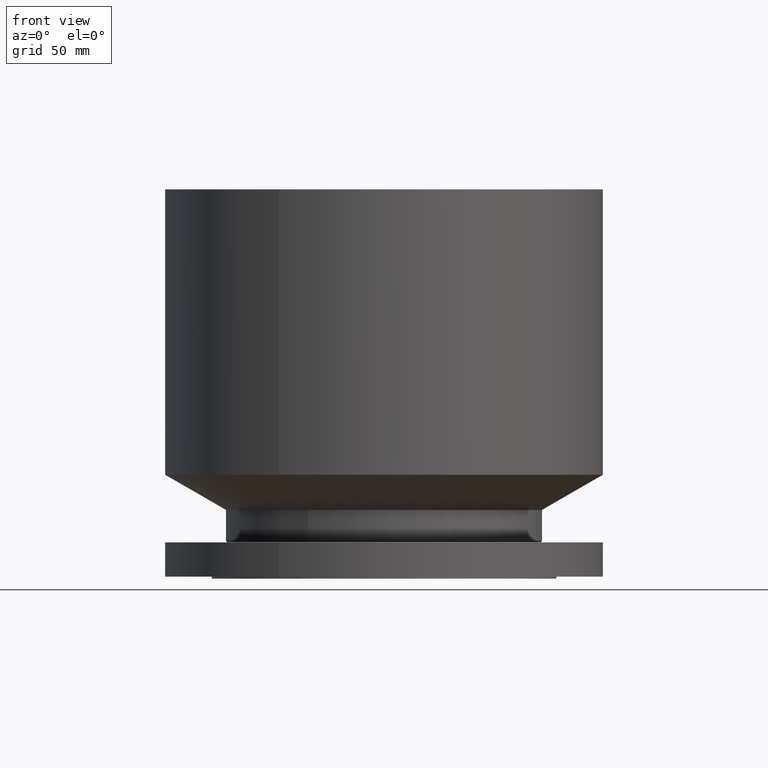
[diagram: clean part render]
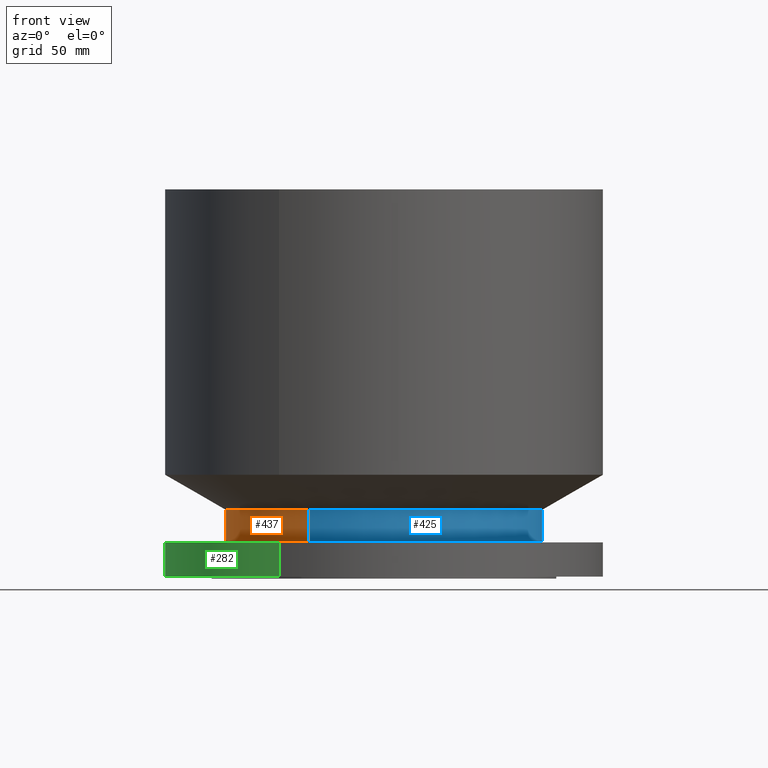
[diagram: same view with three faces highlighted in distinct colors, each labeled with its STEP entity id]
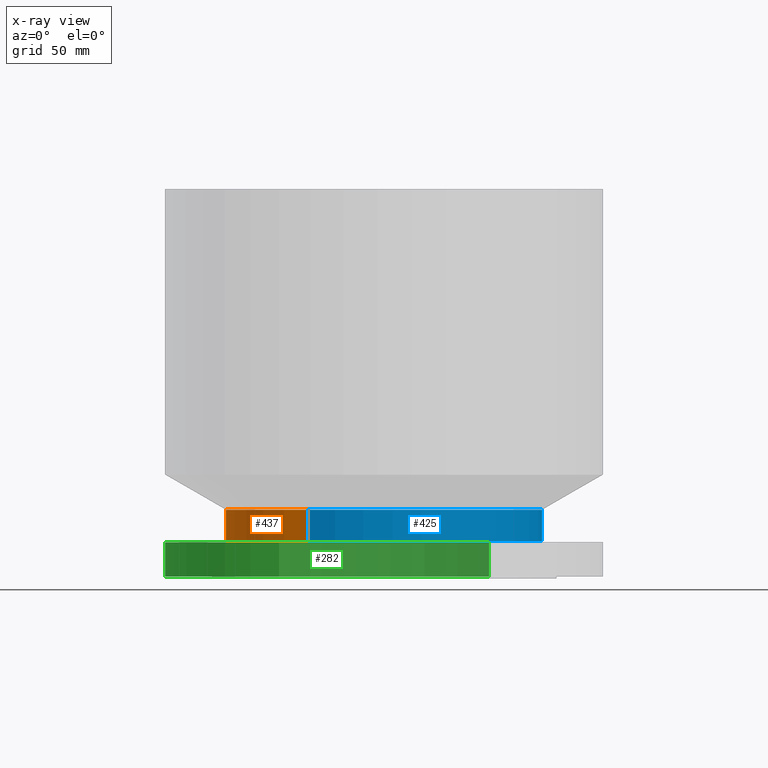
[diagram: x-ray of the same camera — body ghosted, the three highlighted faces saturated]
A machine part, front view with three faces highlighted in distinct colors.
The next image is the same camera in x-ray (body ghosted, the three faces saturated) — at least one of them is partly hidden behind the body in this view.
Their STEP definitions:

[orange] entity #437 — the highlighted cylindrical surface (partial cylindrical patch) has radius 123.825 mm, axis along (0, 0, -1).
#385=AXIS2_PLACEMENT_3D('Circle Axis2P3D',#383,#384,$) ;
#398=AXIS2_PLACEMENT_3D('Cylinder Axis2P3D',#395,#396,#397) ;
#428=AXIS2_PLACEMENT_3D('Circle Axis2P3D',#426,#427,$) ;
#361=CARTESIAN_POINT('Vertex',(2.3371995007,4.27821498923,1.09848076212)) ;
#368=CARTESIAN_POINT('Vertex',(-2.3371995007,-4.27821498923,1.09848076212)) ;
#383=CARTESIAN_POINT('Axis2P3D Location',(0.,0.,1.09848076212)) ;
#395=CARTESIAN_POINT('Axis2P3D Location',(0.,0.,5.93750000002)) ;
#400=CARTESIAN_POINT('Line Origine',(2.3371995007,4.27821498923,1.57799038106)) ;
#404=CARTESIAN_POINT('Vertex',(2.3371995007,4.27821498923,2.05750000001)) ;
#411=CARTESIAN_POINT('Vertex',(-2.3371995007,-4.27821498923,2.05750000001)) ;
#414=CARTESIAN_POINT('Line Origine',(-2.3371995007,-4.27821498923,1.57799038106)) ;
#426=CARTESIAN_POINT('Axis2P3D Location',(0.,0.,2.05750000001)) ;
#384=DIRECTION('Axis2P3D Direction',(-0.,0.,0.0393700787402)) ;
#396=DIRECTION('Axis2P3D Direction',(0.,0.,-0.0393700787402)) ;
#397=DIRECTION('Axis2P3D XDirection',(-0.0188750212049,-0.0345504945626,0.)) ;
#401=DIRECTION('Vector Direction',(0.,0.,-0.0393700787402)) ;
#415=DIRECTION('Vector Direction',(0.,0.,-0.0393700787402)) ;
#427=DIRECTION('Axis2P3D Direction',(0.,0.,-0.0393700787402)) ;
#402=VECTOR('Line Direction',#401,0.0393700787402) ;
#416=VECTOR('Line Direction',#415,0.0393700787402) ;
#432=ORIENTED_EDGE('',*,*,#387,.F.) ;
#433=ORIENTED_EDGE('',*,*,#418,.T.) ;
#434=ORIENTED_EDGE('',*,*,#430,.T.) ;
#435=ORIENTED_EDGE('',*,*,#406,.F.) ;
#437=ADVANCED_FACE('PartBody',(#436),#399,.T.) ;
#386=CIRCLE('generated circle',#385,4.87500000002) ;
#429=CIRCLE('generated circle',#428,4.87500000002) ;
#399=CYLINDRICAL_SURFACE('generated cylinder',#398,4.87500000002) ;
#387=EDGE_CURVE('',#369,#362,#386,.F.) ;
#406=EDGE_CURVE('',#362,#405,#403,.F.) ;
#418=EDGE_CURVE('',#369,#412,#417,.F.) ;
#430=EDGE_CURVE('',#412,#405,#429,.T.) ;
#431=EDGE_LOOP('',(#432,#433,#434,#435)) ;
#436=FACE_OUTER_BOUND('',#431,.T.) ;
#403=LINE('Line',#400,#402) ;
#417=LINE('Line',#414,#416) ;
#362=VERTEX_POINT('',#361) ;
#369=VERTEX_POINT('',#368) ;
#405=VERTEX_POINT('',#404) ;
#412=VERTEX_POINT('',#411) ;

[blue] entity #425 — the highlighted cylindrical surface (partial cylindrical patch) has radius 123.825 mm, axis along (0, 0, -1).
#366=AXIS2_PLACEMENT_3D('Circle Axis2P3D',#364,#365,$) ;
#398=AXIS2_PLACEMENT_3D('Cylinder Axis2P3D',#395,#396,#397) ;
#409=AXIS2_PLACEMENT_3D('Circle Axis2P3D',#407,#408,$) ;
#361=CARTESIAN_POINT('Vertex',(2.3371995007,4.27821498923,1.09848076212)) ;
#364=CARTESIAN_POINT('Axis2P3D Location',(0.,0.,1.09848076212)) ;
#368=CARTESIAN_POINT('Vertex',(-2.3371995007,-4.27821498923,1.09848076212)) ;
#395=CARTESIAN_POINT('Axis2P3D Location',(0.,0.,5.93750000002)) ;
#400=CARTESIAN_POINT('Line Origine',(2.3371995007,4.27821498923,1.57799038106)) ;
#404=CARTESIAN_POINT('Vertex',(2.3371995007,4.27821498923,2.05750000001)) ;
#407=CARTESIAN_POINT('Axis2P3D Location',(0.,0.,2.05750000001)) ;
#411=CARTESIAN_POINT('Vertex',(-2.3371995007,-4.27821498923,2.05750000001)) ;
#414=CARTESIAN_POINT('Line Origine',(-2.3371995007,-4.27821498923,1.57799038106)) ;
#365=DIRECTION('Axis2P3D Direction',(-0.,0.,0.0393700787402)) ;
#396=DIRECTION('Axis2P3D Direction',(0.,0.,-0.0393700787402)) ;
#397=DIRECTION('Axis2P3D XDirection',(-0.0188750212049,-0.0345504945626,0.)) ;
#401=DIRECTION('Vector Direction',(0.,0.,-0.0393700787402)) ;
#408=DIRECTION('Axis2P3D Direction',(0.,0.,-0.0393700787402)) ;
#415=DIRECTION('Vector Direction',(0.,0.,-0.0393700787402)) ;
#402=VECTOR('Line Direction',#401,0.0393700787402) ;
#416=VECTOR('Line Direction',#415,0.0393700787402) ;
#420=ORIENTED_EDGE('',*,*,#370,.F.) ;
#421=ORIENTED_EDGE('',*,*,#406,.T.) ;
#422=ORIENTED_EDGE('',*,*,#413,.T.) ;
#423=ORIENTED_EDGE('',*,*,#418,.F.) ;
#425=ADVANCED_FACE('PartBody',(#424),#399,.T.) ;
#367=CIRCLE('generated circle',#366,4.87500000002) ;
#410=CIRCLE('generated circle',#409,4.87500000002) ;
#399=CYLINDRICAL_SURFACE('generated cylinder',#398,4.87500000002) ;
#370=EDGE_CURVE('',#362,#369,#367,.F.) ;
#406=EDGE_CURVE('',#362,#405,#403,.F.) ;
#413=EDGE_CURVE('',#405,#412,#410,.T.) ;
#418=EDGE_CURVE('',#369,#412,#417,.F.) ;
#419=EDGE_LOOP('',(#420,#421,#422,#423)) ;
#424=FACE_OUTER_BOUND('',#419,.T.) ;
#403=LINE('Line',#400,#402) ;
#417=LINE('Line',#414,#416) ;
#362=VERTEX_POINT('',#361) ;
#369=VERTEX_POINT('',#368) ;
#405=VERTEX_POINT('',#404) ;
#412=VERTEX_POINT('',#411) ;

[green] entity #282 — the highlighted cylindrical surface (partial cylindrical patch) has radius 171.45 mm, axis along (0, 0, -1).
#82=AXIS2_PLACEMENT_3D('Circle Axis2P3D',#80,#81,$) ;
#255=AXIS2_PLACEMENT_3D('Cylinder Axis2P3D',#252,#253,#254) ;
#266=AXIS2_PLACEMENT_3D('Circle Axis2P3D',#264,#265,$) ;
#80=CARTESIAN_POINT('Axis2P3D Location',(0.,0.,0.)) ;
#84=CARTESIAN_POINT('Vertex',(-3.23612238559,-5.92368229278,1.1189649382E-015)) ;
#86=CARTESIAN_POINT('Vertex',(3.23612238559,5.92368229278,1.1189649382E-015)) ;
#252=CARTESIAN_POINT('Axis2P3D Location',(0.,0.,5.93750000002)) ;
#257=CARTESIAN_POINT('Line Origine',(-3.23612238559,-5.92368229278,7.5387658774)) ;
#261=CARTESIAN_POINT('Vertex',(-3.23612238559,-5.92368229278,1.0575)) ;
#264=CARTESIAN_POINT('Axis2P3D Location',(0.,0.,1.0575)) ;
#268=CARTESIAN_POINT('Vertex',(3.23612238559,5.92368229278,1.0575)) ;
#271=CARTESIAN_POINT('Line Origine',(3.23612238559,5.92368229278,7.5387658774)) ;
#81=DIRECTION('Axis2P3D Direction',(0.,0.,-0.0393700787402)) ;
#253=DIRECTION('Axis2P3D Direction',(0.,0.,-0.0393700787402)) ;
#254=DIRECTION('Axis2P3D XDirection',(-0.0188750212049,-0.0345504945626,0.)) ;
#258=DIRECTION('Vector Direction',(0.,0.,-0.0393700787402)) ;
#265=DIRECTION('Axis2P3D Direction',(0.,0.,-0.0393700787402)) ;
#272=DIRECTION('Vector Direction',(0.,0.,-0.0393700787402)) ;
#259=VECTOR('Line Direction',#258,0.0393700787402) ;
#273=VECTOR('Line Direction',#272,0.0393700787402) ;
#277=ORIENTED_EDGE('',*,*,#88,.F.) ;
#278=ORIENTED_EDGE('',*,*,#263,.T.) ;
#279=ORIENTED_EDGE('',*,*,#270,.T.) ;
#280=ORIENTED_EDGE('',*,*,#275,.F.) ;
#282=ADVANCED_FACE('PartBody',(#281),#256,.T.) ;
#83=CIRCLE('generated circle',#82,6.75000000003) ;
#267=CIRCLE('generated circle',#266,6.75000000003) ;
#256=CYLINDRICAL_SURFACE('generated cylinder',#255,6.75000000003) ;
#88=EDGE_CURVE('',#85,#87,#83,.T.) ;
#263=EDGE_CURVE('',#85,#262,#260,.F.) ;
#270=EDGE_CURVE('',#262,#269,#267,.T.) ;
#275=EDGE_CURVE('',#87,#269,#274,.F.) ;
#276=EDGE_LOOP('',(#277,#278,#279,#280)) ;
#281=FACE_OUTER_BOUND('',#276,.T.) ;
#260=LINE('Line',#257,#259) ;
#274=LINE('Line',#271,#273) ;
#85=VERTEX_POINT('',#84) ;
#87=VERTEX_POINT('',#86) ;
#262=VERTEX_POINT('',#261) ;
#269=VERTEX_POINT('',#268) ;